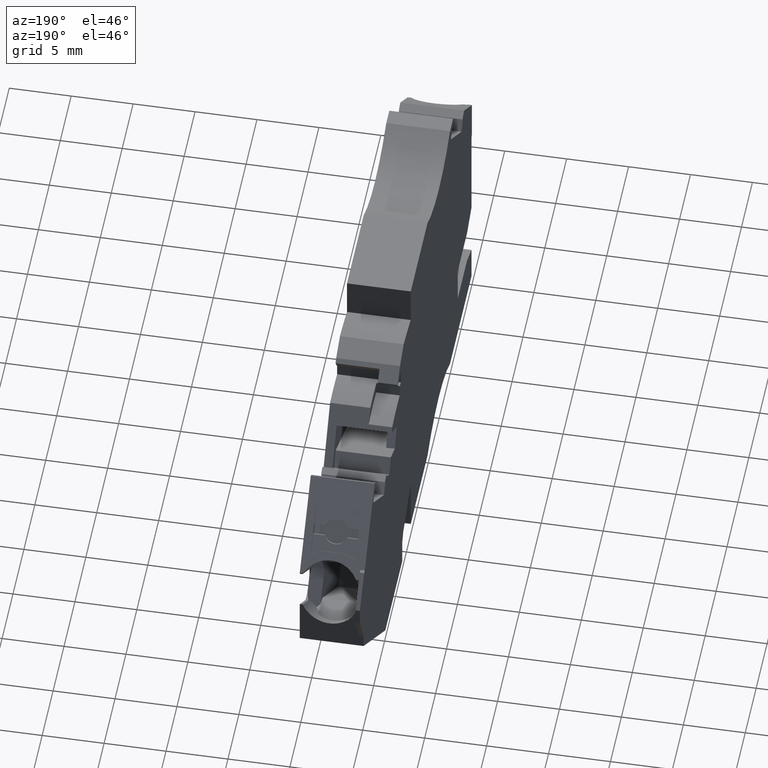
[diagram: clean part render]
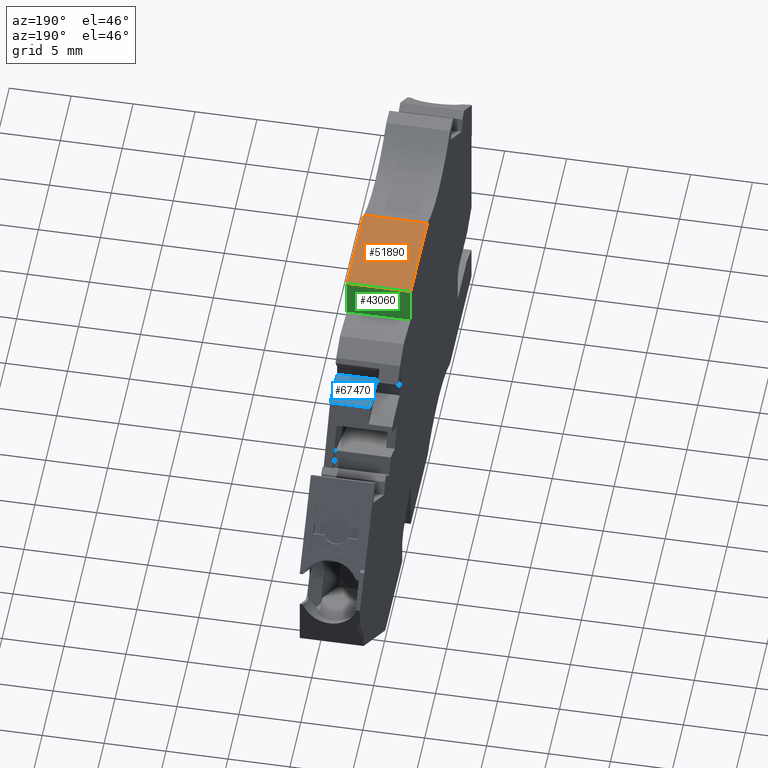
[diagram: same view with three faces highlighted in distinct colors, each labeled with its STEP entity id]
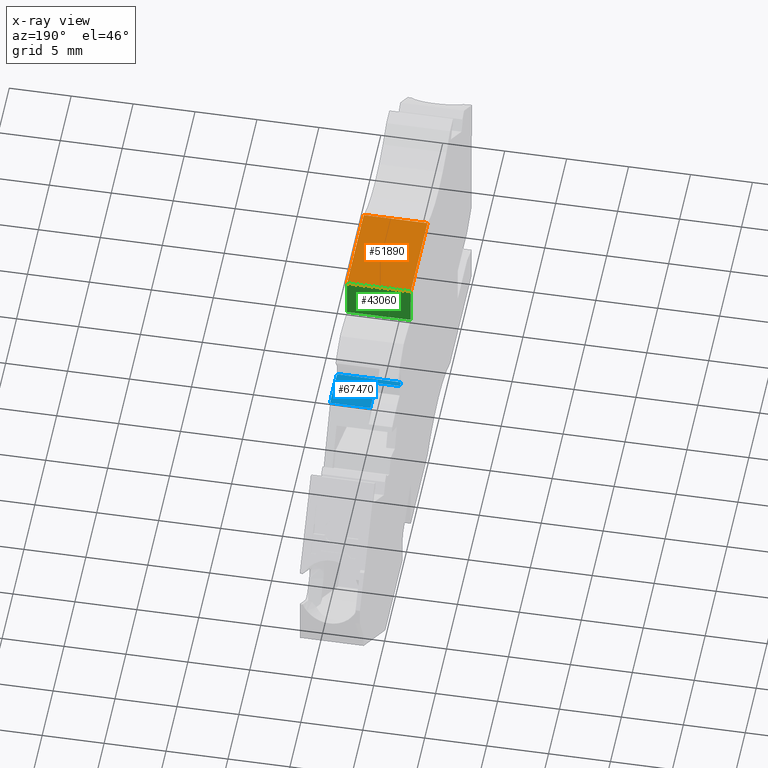
[diagram: x-ray of the same camera — body ghosted, the three highlighted faces saturated]
A machine part, auxiliary view with three faces highlighted in distinct colors.
The next image is the same camera in x-ray (body ghosted, the three faces saturated) — at least one of them is partly hidden behind the body in this view.
Their STEP definitions:

[orange] entity #51890 — the highlighted planar face has unit normal (0, -0, 1).
#42070=CARTESIAN_POINT('',(440.590572457062,697.534347841794,
101.669999990274));
#42080=VERTEX_POINT('',#42070);
#42110=CARTESIAN_POINT('',(459.46890269916,697.534347841794,
101.66999998399));
#42120=DIRECTION('',(1.,4.1633362066292E-15,-3.32876907831201E-10));
#42130=VECTOR('',#42120,1.);
#42140=LINE('',#42110,#42130);
#42150=CARTESIAN_POINT('',(448.253158679165,697.534347841794,
101.669999987723));
#42160=VERTEX_POINT('',#42150);
#42170=EDGE_CURVE('',#42080,#42160,#42140,.T.);
#42900=CARTESIAN_POINT('',(448.25315867797,697.534347841924,
99.0199999960044));
#42910=DIRECTION('',(-4.51048008211466E-10,4.91722287564697E-11,-1.));
#42920=VECTOR('',#42910,1.);
#42930=LINE('',#42900,#42920);
#42940=CARTESIAN_POINT('',(448.253158676843,697.534347842047,
96.5199999954787));
#42950=VERTEX_POINT('',#42940);
#42960=EDGE_CURVE('',#42160,#42950,#42930,.T.);
#51660=CARTESIAN_POINT('',(454.260324054578,697.534347842047,
96.519999988928));
#51670=DIRECTION('',(-4.10781222701393E-15,1.,4.91722287564715E-11));
#51680=DIRECTION('',(1.,4.10782508455626E-15,-2.61479754951826E-10));
#51690=AXIS2_PLACEMENT_3D('',#51660,#51670,#51680);
#51700=PLANE('',#51690);
#51710=ORIENTED_EDGE('',*,*,#42960,.T.);
#51720=ORIENTED_EDGE('',*,*,#42170,.T.);
#51730=CARTESIAN_POINT('',(440.590572431034,697.534347837579,
111.345000173025));
#51740=DIRECTION('',(5.3188844066923E-10,-1.23311822582352E-10,1.));
#51750=VECTOR('',#51740,1.);
#51760=LINE('',#51730,#51750);
#51770=CARTESIAN_POINT('',(440.59057242727,697.534347842052,
96.5199999904505));
#51780=VERTEX_POINT('',#51770);
#51790=EDGE_CURVE('',#51780,#42080,#51760,.T.);
#51800=ORIENTED_EDGE('',*,*,#51790,.T.);
#51810=CARTESIAN_POINT('',(459.46890233526,697.534347842047,
96.5199999916948));
#51820=DIRECTION('',(1.,4.16333620479202E-15,-3.37375427205548E-10));
#51830=VECTOR('',#51820,1.);
#51840=LINE('',#51810,#51830);
#51850=EDGE_CURVE('',#51780,#42950,#51840,.T.);
#51860=ORIENTED_EDGE('',*,*,#51850,.F.);
#51870=EDGE_LOOP('',(#51860,#51800,#51720,#51710));
#51880=FACE_OUTER_BOUND('',#51870,.T.);
#51890=ADVANCED_FACE('',(#51880),#51700,.T.);

[blue] entity #67470 — the highlighted cylindrical surface (partial cylindrical patch) has radius 13.3751 mm, axis along (1, 0, -0).
#42620=CARTESIAN_POINT('',(452.770448880475,691.742490591295,
101.66999998548));
#42630=VERTEX_POINT('',#42620);
#42660=CARTESIAN_POINT('',(454.434649315665,678.471305937232,
101.669999990981));
#42670=DIRECTION('',(3.32877193696472E-10,-1.27710826844375E-10,1.));
#42680=DIRECTION('',(1.,-1.70041425384817E-10,-3.32877193718188E-10));
#42690=AXIS2_PLACEMENT_3D('',#42660,#42670,#42680);
#42700=CIRCLE('',#42690,13.3751226241374);
#42710=CARTESIAN_POINT('',(455.987225781161,691.756011861816,
101.669999984411));
#42720=VERTEX_POINT('',#42710);
#42730=EDGE_CURVE('',#42720,#42630,#42700,.T.);
#55990=CARTESIAN_POINT('',(452.770448885207,691.742490592761,
96.5199999909231));
#56000=VERTEX_POINT('',#55990);
#56030=CARTESIAN_POINT('',(452.770448887332,691.742490588664,
122.269999982601));
#56040=DIRECTION('',(3.32877193696472E-10,-1.27710826844375E-10,1.));
#56050=VECTOR('',#56040,1.);
#56060=LINE('',#56030,#56050);
#56070=EDGE_CURVE('',#56000,#42630,#56060,.T.);
#61840=CARTESIAN_POINT('',(453.243876020867,691.793316453393,
96.5199999894073));
#61850=VERTEX_POINT('',#61840);
#61880=CARTESIAN_POINT('',(454.43464931395,678.47130593789,
96.5199999886743));
#61890=DIRECTION('',(3.32877193696472E-10,-1.27710826844375E-10,1.));
#61900=DIRECTION('',(1.,-1.70041369873666E-10,-3.32876926393724E-10));
#61910=AXIS2_PLACEMENT_3D('',#61880,#61890,#61900);
#61920=CIRCLE('',#61910,13.3751226241374);
#61930=EDGE_CURVE('',#61850,#56000,#61920,.T.);
#66930=CARTESIAN_POINT('',(454.434649322522,678.471305934601,
122.269999980352));
#66940=DIRECTION('',(3.32877193696472E-10,-1.27710826844375E-10,1.));
#66950=DIRECTION('',(1.,-1.70041369873666E-10,-3.32876926393724E-10));
#66960=AXIS2_PLACEMENT_3D('',#66930,#66940,#66950);
#66970=CYLINDRICAL_SURFACE('',#66960,13.3751226241374);
#66980=ORIENTED_EDGE('',*,*,#56070,.T.);
#66990=ORIENTED_EDGE('',*,*,#61930,.T.);
#67000=CARTESIAN_POINT('',(454.43464932251,678.47130593486,
101.669999983231));
#67010=DIRECTION('',(3.32877193696472E-10,-1.27710826844375E-10,1.));
#67020=DIRECTION('',(1.,-1.70041369873666E-10,-3.32876926393724E-10));
#67030=AXIS2_PLACEMENT_3D('',#67000,#67010,#67020);
#67040=CYLINDRICAL_SURFACE('',#67030,13.3751226241374);
#67050=CARTESIAN_POINT('',(453.20578155561,692.229908776701,
98.419999988464));
#67060=DIRECTION('',(-0.996214960705495,-0.0869238291065774,
1.53668002073808E-10));
#67070=DIRECTION('',(0.0869238291065775,-0.996214960705495,
-2.13363189531613E-10));
#67080=AXIS2_PLACEMENT_3D('',#67050,#67060,#67070);
#67090=PLANE('',#67080);
#67100=CARTESIAN_POINT('',(453.243876021125,691.793316450432,
96.5199999900427));
#67110=CARTESIAN_POINT('',(453.243876021151,691.79331645041,
96.6783333231734));
#67120=CARTESIAN_POINT('',(453.243876021178,691.793316450387,
96.836666656304));
#67130=CARTESIAN_POINT('',(453.243876021204,691.793316450365,
96.9949999894346));
#67140=CARTESIAN_POINT('',(453.243876021231,691.793316450342,
97.1533333225652));
#67150=CARTESIAN_POINT('',(453.243876021257,691.793316450319,
97.3116666556959));
#67160=CARTESIAN_POINT('',(453.243876021283,691.793316450297,
97.4699999888265));
#67170=CARTESIAN_POINT('',(453.24387602131,691.793316450274,
97.6283333219571));
#67180=CARTESIAN_POINT('',(453.243876021336,691.793316450252,
97.7866666550877));
#67190=CARTESIAN_POINT('',(453.243876021363,691.793316450229,
97.9449999882183));
#67200=CARTESIAN_POINT('',(453.243876021389,691.793316450207,
98.1033333213489));
#67210=CARTESIAN_POINT('',(453.243876021415,691.793316450184,
98.2616666544796));
#67220=CARTESIAN_POINT('',(453.243876021442,691.793316450161,
98.4199999876102));
#67230=B_SPLINE_CURVE_WITH_KNOTS('',3,(#67100,#67110,#67120,#67130,
#67140,#67150,#67160,#67170,#67180,#67190,#67200,#67210,#67220),
.UNSPECIFIED.,.F.,.F.,(4,3,3,3,4),(0.,0.474999999391869,
0.949999998783724,1.42499999817558,1.89999999756743),.UNSPECIFIED.);
#67240=SURFACE_CURVE('',#67230,(#67040,#67090),.CURVE_3D.);
#67250=CARTESIAN_POINT('',(453.243876021442,691.793316450161,
98.4199999876101));
#67260=VERTEX_POINT('',#67250);
#67270=EDGE_CURVE('',#61850,#67260,#67240,.T.);
#67280=ORIENTED_EDGE('',*,*,#67270,.F.);
#67290=CARTESIAN_POINT('',(454.434649321428,678.471305935275,
98.4199999855124));
#67300=DIRECTION('',(-3.32877193696472E-10,1.27710826844375E-10,-1.));
#67310=DIRECTION('',(1.,-1.70041369873666E-10,-3.32876926393724E-10));
#67320=AXIS2_PLACEMENT_3D('',#67290,#67300,#67310);
#67330=CIRCLE('',#67320,13.3751226241374);
#67340=CARTESIAN_POINT('',(455.987225781173,691.756011861541,
98.4199999866923));
#67350=VERTEX_POINT('',#67340);
#67360=EDGE_CURVE('',#67260,#67350,#67330,.T.);
#67370=ORIENTED_EDGE('',*,*,#67360,.F.);
#67380=CARTESIAN_POINT('',(455.987225781539,691.756011861209,
101.669999984411));
#67390=DIRECTION('',(3.32877193696472E-10,-1.27710826844375E-10,1.));
#67400=VECTOR('',#67390,1.);
#67410=LINE('',#67380,#67400);
#67420=EDGE_CURVE('',#67350,#42720,#67410,.T.);
#67430=ORIENTED_EDGE('',*,*,#67420,.F.);
#67440=ORIENTED_EDGE('',*,*,#42730,.F.);
#67450=EDGE_LOOP('',(#67440,#67430,#67370,#67280,#66990,#66980));
#67460=FACE_OUTER_BOUND('',#67450,.T.);
#67470=ADVANCED_FACE('',(#67460),#66970,.T.);

[green] entity #43060 — the highlighted planar face has unit normal (0, -1, -0).
#37930=CARTESIAN_POINT('',(453.027343025698,674.889236150999,
122.269999980363));
#37940=DIRECTION('',(3.32877193696472E-10,-1.27710826844375E-10,1.));
#37950=DIRECTION('',(1.,-1.70041369873666E-10,-3.32876926393724E-10));
#37960=AXIS2_PLACEMENT_3D('',#37930,#37940,#37950);
#37970=CYLINDRICAL_SURFACE('',#37960,19.9582210602397);
#38050=CARTESIAN_POINT('',(448.253158679165,694.268032601815,
101.669999987306));
#38060=VERTEX_POINT('',#38050);
#38090=CARTESIAN_POINT('',(448.253158676843,685.334852905494,
96.5199999917484));
#38100=DIRECTION('',(-1.,-4.10785852870878E-15,4.51048008211466E-10));
#38110=DIRECTION('',(-4.10782514912085E-15,1.,7.40045124172396E-11));
#38120=AXIS2_PLACEMENT_3D('',#38090,#38100,#38110);
#38130=PLANE('',#38120);
#38140=CARTESIAN_POINT('',(448.253158679165,694.268032601815,
101.669999987306));
#38150=CARTESIAN_POINT('',(448.253158678972,694.268032601857,
101.240833320924));
#38160=CARTESIAN_POINT('',(448.253158678778,694.268032601899,
100.811666654541));
#38170=CARTESIAN_POINT('',(448.253158678585,694.268032601942,
100.382499988158));
#38180=CARTESIAN_POINT('',(448.253158678391,694.268032601984,
99.9533333217756));
#38190=CARTESIAN_POINT('',(448.253158678198,694.268032602026,
99.524166655393));
#38200=CARTESIAN_POINT('',(448.253158678004,694.268032602069,
99.0949999890103));
#38210=CARTESIAN_POINT('',(448.25315867781,694.268032602111,
98.6658333226276));
#38220=CARTESIAN_POINT('',(448.253158677617,694.268032602153,
98.236666656245));
#38230=CARTESIAN_POINT('',(448.253158677423,694.268032602196,
97.8074999898622));
#38240=CARTESIAN_POINT('',(448.25315867723,694.268032602238,
97.3783333234796));
#38250=CARTESIAN_POINT('',(448.253158677036,694.26803260228,
96.9491666570969));
#38260=CARTESIAN_POINT('',(448.253158676843,694.268032602323,
96.5199999907142));
#38270=B_SPLINE_CURVE_WITH_KNOTS('',3,(#38140,#38150,#38160,#38170,
#38180,#38190,#38200,#38210,#38220,#38230,#38240,#38250,#38260),
.UNSPECIFIED.,.F.,.F.,(4,3,3,3,4),(0.,1.28749999914803,2.57499999829605,
3.86249999744408,5.1499999965921),.UNSPECIFIED.);
#38280=SURFACE_CURVE('',#38270,(#38130,#37970),.CURVE_3D.);
#38290=CARTESIAN_POINT('',(448.253158676843,694.268032602323,
96.5199999907142));
#38300=VERTEX_POINT('',#38290);
#38310=EDGE_CURVE('',#38060,#38300,#38280,.T.);
#42150=CARTESIAN_POINT('',(448.253158679165,697.534347841794,
101.669999987723));
#42160=VERTEX_POINT('',#42150);
#42190=CARTESIAN_POINT('',(448.253158679166,658.650091617156,
101.669999982758));
#42200=DIRECTION('',(4.05231396758247E-15,-1.,-1.27710674901289E-10));
#42210=VECTOR('',#42200,1.);
#42220=LINE('',#42190,#42210);
#42230=EDGE_CURVE('',#42160,#38060,#42220,.T.);
#42880=ORIENTED_EDGE('',*,*,#38310,.T.);
#42890=ORIENTED_EDGE('',*,*,#42230,.T.);
#42900=CARTESIAN_POINT('',(448.25315867797,697.534347841924,
99.0199999960044));
#42910=DIRECTION('',(-4.51048008211466E-10,4.91722287564697E-11,-1.));
#42920=VECTOR('',#42910,1.);
#42930=LINE('',#42900,#42920);
#42940=CARTESIAN_POINT('',(448.253158676843,697.534347842047,
96.5199999954787));
#42950=VERTEX_POINT('',#42940);
#42960=EDGE_CURVE('',#42160,#42950,#42930,.T.);
#42970=ORIENTED_EDGE('',*,*,#42960,.F.);
#42980=CARTESIAN_POINT('',(448.253158676843,658.650091619474,
96.5199999885867));
#42990=DIRECTION('',(4.05231401190294E-15,-1.,-4.9171971582647E-11));
#43000=VECTOR('',#42990,1.);
#43010=LINE('',#42980,#43000);
#43020=EDGE_CURVE('',#42950,#38300,#43010,.T.);
#43030=ORIENTED_EDGE('',*,*,#43020,.F.);
#43040=EDGE_LOOP('',(#43030,#42970,#42890,#42880));
#43050=FACE_OUTER_BOUND('',#43040,.T.);
#43060=ADVANCED_FACE('',(#43050),#38130,.F.);